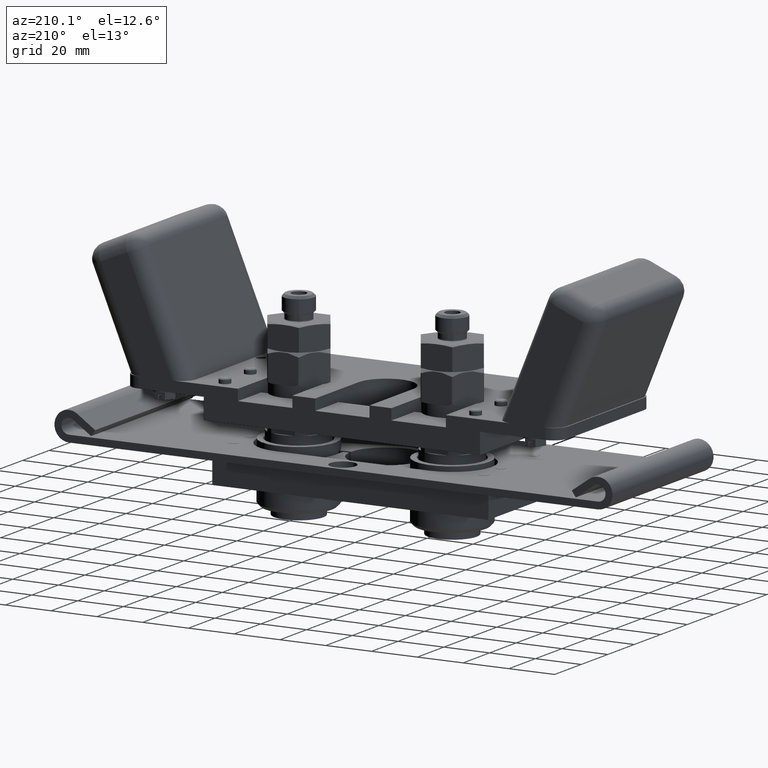
[diagram: clean part render]
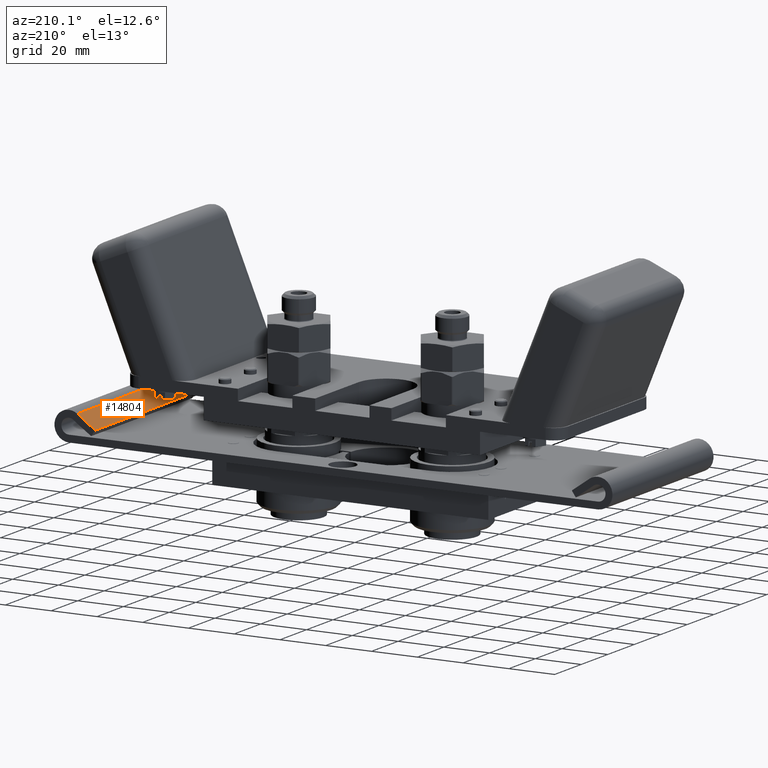
[diagram: same view with one face highlighted and labeled with its STEP entity id]
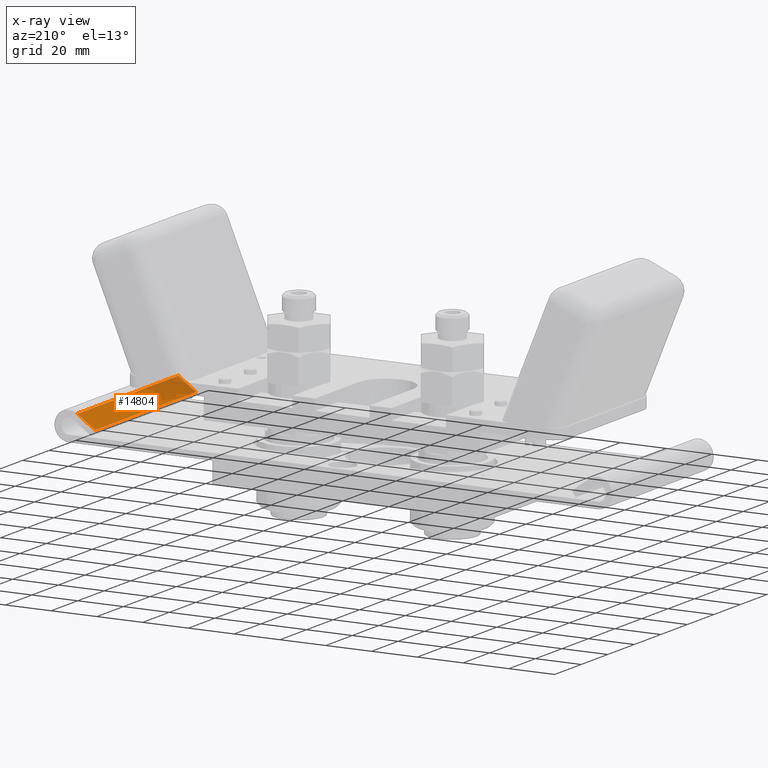
[diagram: x-ray of the same camera — body ghosted, the highlighted face saturated]
A machine part, auxiliary view. The second image highlights one B-rep face of the part: STEP entity #14804.
The next image is the same camera in x-ray: the body ghosted, the highlighted face saturated — about 28% of this face is hidden behind the body in this view.
In plain terms, the highlighted planar face has unit normal (0.5736, 0, -0.8192).
Its self-contained STEP definition (entity closure, byte-faithful):
#601=DIRECTION('',(-1.776356839400E-14,1.E0,2.551662584930E-14));
#602=VECTOR('',#601,3.E0);
#603=CARTESIAN_POINT('',(4.407160239999E0,0.E0,4.540603502545E-1));
#604=LINE('',#603,#602);
#613=DIRECTION('',(8.191520442891E-1,0.E0,5.735764363509E-1));
#614=VECTOR('',#613,3.750000000002E-1);
#615=CARTESIAN_POINT('',(4.099978223390E0,0.E0,2.389691866228E-1));
#616=LINE('',#615,#614);
#885=DIRECTION('',(-8.191520442892E-1,0.E0,-5.735764363508E-1));
#886=VECTOR('',#885,3.750000000002E-1);
#887=CARTESIAN_POINT('',(4.407160239999E0,3.E0,4.540603502545E-1));
#888=LINE('',#887,#886);
#926=DIRECTION('',(2.427687680514E-14,-1.E0,-3.449092863169E-14));
#927=VECTOR('',#926,3.E0);
#928=CARTESIAN_POINT('',(4.099978223390E0,3.E0,2.389691866229E-1));
#929=LINE('',#928,#927);
#12127=CARTESIAN_POINT('',(4.407160239999E0,0.E0,4.540603502545E-1));
#12128=CARTESIAN_POINT('',(4.407160239999E0,3.E0,4.540603502545E-1));
#12129=VERTEX_POINT('',#12127);
#12130=VERTEX_POINT('',#12128);
#12135=CARTESIAN_POINT('',(4.099978223390E0,0.E0,2.389691866228E-1));
#12136=VERTEX_POINT('',#12135);
#12137=CARTESIAN_POINT('',(4.099978223390E0,3.E0,2.389691866229E-1));
#12138=VERTEX_POINT('',#12137);
#14790=CARTESIAN_POINT('',(8.651186981460E0,0.E0,3.425759866989E0));
#14791=DIRECTION('',(5.735764363510E-1,0.E0,-8.191520442890E-1));
#14792=DIRECTION('',(-8.191520442890E-1,0.E0,-5.735764363510E-1));
#14793=AXIS2_PLACEMENT_3D('',#14790,#14791,#14792);
#14794=PLANE('',#14793);
#14795=ORIENTED_EDGE('',*,*,#14769,.F.);
#14797=ORIENTED_EDGE('',*,*,#14796,.F.);
#14799=ORIENTED_EDGE('',*,*,#14798,.F.);
#14801=ORIENTED_EDGE('',*,*,#14800,.F.);
#14802=EDGE_LOOP('',(#14795,#14797,#14799,#14801));
#14803=FACE_OUTER_BOUND('',#14802,.F.);
#14769=EDGE_CURVE('',#12129,#12130,#604,.T.);
#14796=EDGE_CURVE('',#12136,#12129,#616,.T.);
#14798=EDGE_CURVE('',#12138,#12136,#929,.T.);
#14800=EDGE_CURVE('',#12130,#12138,#888,.T.);
#14804=ADVANCED_FACE('',(#14803),#14794,.F.);